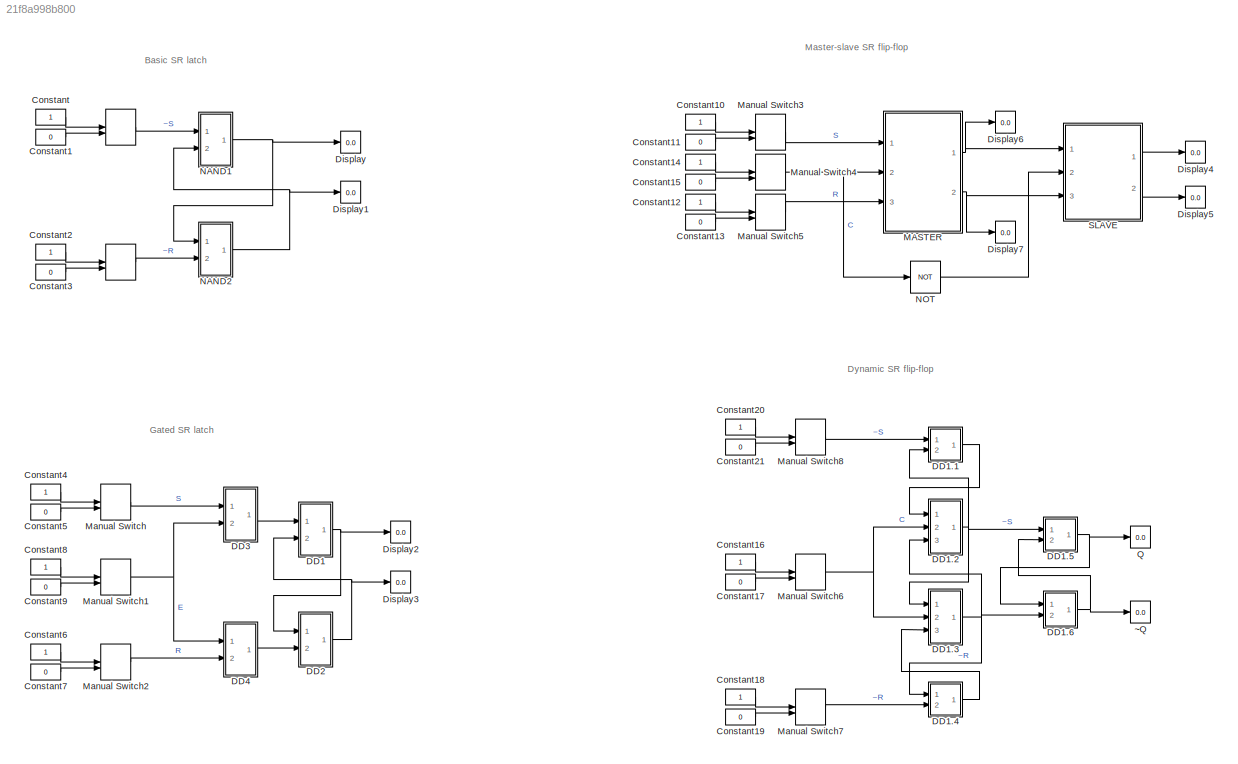
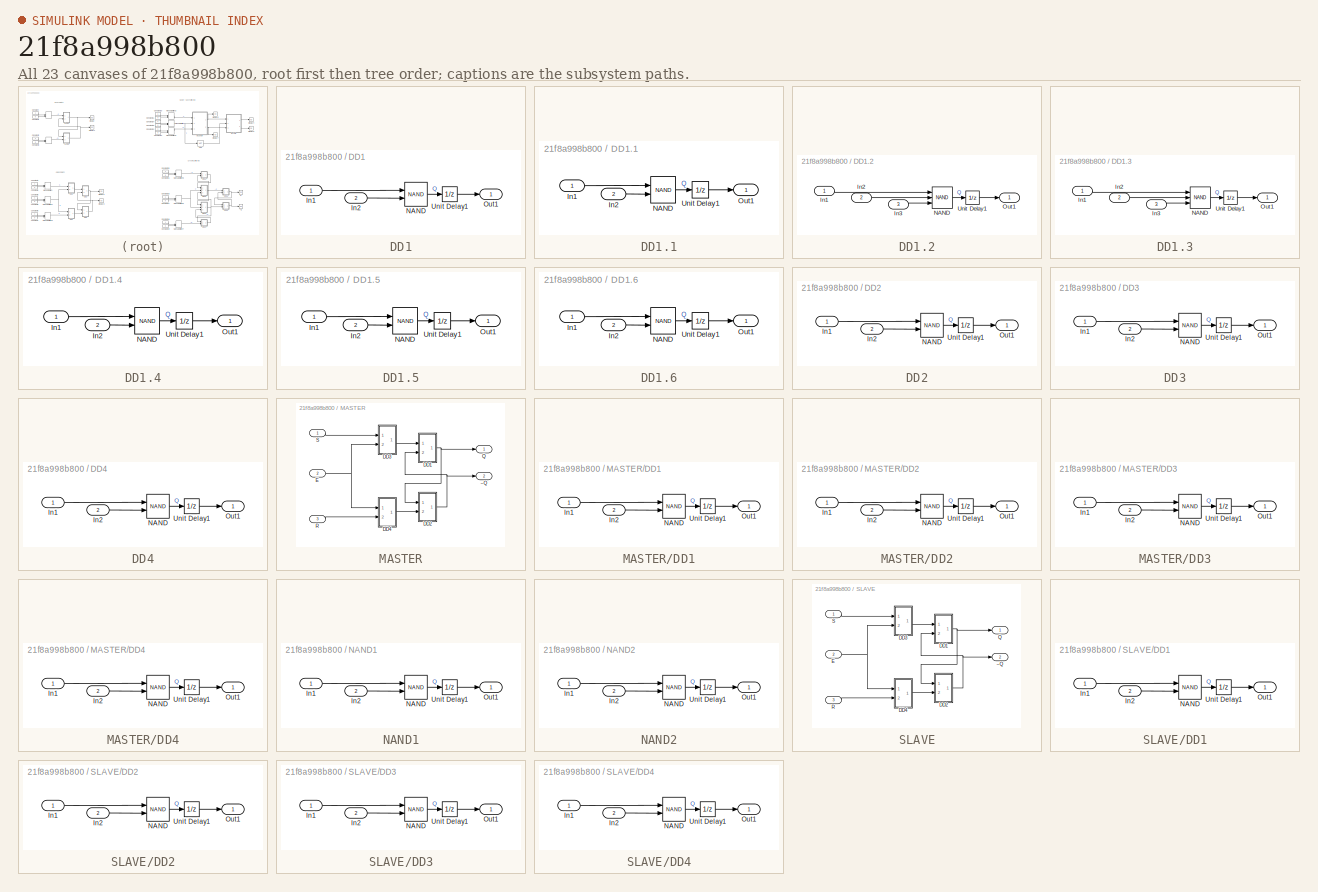
[diagram: thumbnail index - all 23 canvases of the model, root first then tree order]
MODEL slx_21f8a998b800
KIND model
CONFIG AbsTol = auto
CONFIG EnableMultiTasking = off
CONFIG FixedStep = 1
CONFIG MaxStep = 1
CONFIG MinStep = auto
CONFIG RelTol = 1e-3
CONFIG SampleTimeConstraint = Unconstrained
CONFIG Solver = FixedStepAuto
CONFIG SolverName = FixedStepAuto
CONFIG StartTime = 0.0
CONFIG StopTime = inf
BLOCK [ManualSwitch]  
BLOCK [Constant] Constant
  OutDataTypeStr = boolean
BLOCK [Constant] Constant1
  OutDataTypeStr = boolean
  Value = 0
BLOCK [Constant] Constant10
  OutDataTypeStr = boolean
BLOCK [Constant] Constant11
  OutDataTypeStr = boolean
  Value = 0
BLOCK [Constant] Constant12
  OutDataTypeStr = boolean
BLOCK [Constant] Constant13
  OutDataTypeStr = boolean
  Value = 0
BLOCK [Constant] Constant14
  OutDataTypeStr = boolean
BLOCK [Constant] Constant15
  OutDataTypeStr = boolean
  Value = 0
BLOCK [Constant] Constant16
  OutDataTypeStr = boolean
BLOCK [Constant] Constant17
  OutDataTypeStr = boolean
  Value = 0
BLOCK [Constant] Constant18
  OutDataTypeStr = boolean
BLOCK [Constant] Constant19
  OutDataTypeStr = boolean
  Value = 0
BLOCK [Constant] Constant2
  OutDataTypeStr = boolean
BLOCK [Constant] Constant20
  OutDataTypeStr = boolean
BLOCK [Constant] Constant21
  OutDataTypeStr = boolean
  Value = 0
BLOCK [Constant] Constant3
  OutDataTypeStr = boolean
  Value = 0
BLOCK [Constant] Constant4
  OutDataTypeStr = boolean
BLOCK [Constant] Constant5
  OutDataTypeStr = boolean
  Value = 0
BLOCK [Constant] Constant6
  OutDataTypeStr = boolean
BLOCK [Constant] Constant7
  OutDataTypeStr = boolean
  Value = 0
BLOCK [Constant] Constant8
  OutDataTypeStr = boolean
BLOCK [Constant] Constant9
  OutDataTypeStr = boolean
  Value = 0
BLOCK [SubSystem] DD1
  Ports = [2, 1]
  RequestExecContextInheritance = off
BLOCK [SubSystem] DD1.1
  Ports = [2, 1]
  RequestExecContextInheritance = off
BLOCK [Inport] DD1.1/In1
  IconDisplay = Port number
BLOCK [Inport] DD1.1/In2
  IconDisplay = Port number
  Port = 2
BLOCK [Logic] DD1.1/NAND
  AllPortsSameDT = off
  IconShape = distinctive
  Operator = NAND
  OutDataTypeStr = boolean
  Ports = [2, 1]
BLOCK [Outport] DD1.1/Out1
  IconDisplay = Port number
BLOCK [UnitDelay] DD1.1/Unit Delay1
  HasFrameUpgradeWarning = on
  SampleTime = -1
BLOCK [SubSystem] DD1.2
  Ports = [3, 1]
  RequestExecContextInheritance = off
BLOCK [Inport] DD1.2/In1
  IconDisplay = Port number
BLOCK [Inport] DD1.2/In2
  IconDisplay = Port number
  Port = 2
BLOCK [Inport] DD1.2/In3
  IconDisplay = Port number
  Port = 3
BLOCK [Logic] DD1.2/NAND
  AllPortsSameDT = off
  IconShape = distinctive
  Inputs = 3
  Operator = NAND
  OutDataTypeStr = boolean
  Ports = [3, 1]
BLOCK [Outport] DD1.2/Out1
  IconDisplay = Port number
BLOCK [UnitDelay] DD1.2/Unit Delay1
  HasFrameUpgradeWarning = on
  SampleTime = -1
BLOCK [SubSystem] DD1.3
  Ports = [3, 1]
  RequestExecContextInheritance = off
BLOCK [Inport] DD1.3/In1
  IconDisplay = Port number
BLOCK [Inport] DD1.3/In2
  IconDisplay = Port number
  Port = 2
BLOCK [Inport] DD1.3/In3
  IconDisplay = Port number
  Port = 3
BLOCK [Logic] DD1.3/NAND
  AllPortsSameDT = off
  IconShape = distinctive
  Inputs = 3
  Operator = NAND
  OutDataTypeStr = boolean
  Ports = [3, 1]
BLOCK [Outport] DD1.3/Out1
  IconDisplay = Port number
BLOCK [UnitDelay] DD1.3/Unit Delay1
  HasFrameUpgradeWarning = on
  SampleTime = -1
BLOCK [SubSystem] DD1.4
  Ports = [2, 1]
  RequestExecContextInheritance = off
BLOCK [Inport] DD1.4/In1
  IconDisplay = Port number
BLOCK [Inport] DD1.4/In2
  IconDisplay = Port number
  Port = 2
BLOCK [Logic] DD1.4/NAND
  AllPortsSameDT = off
  IconShape = distinctive
  Operator = NAND
  OutDataTypeStr = boolean
  Ports = [2, 1]
BLOCK [Outport] DD1.4/Out1
  IconDisplay = Port number
BLOCK [UnitDelay] DD1.4/Unit Delay1
  HasFrameUpgradeWarning = on
  SampleTime = -1
BLOCK [SubSystem] DD1.5
  Ports = [2, 1]
  RequestExecContextInheritance = off
BLOCK [Inport] DD1.5/In1
  IconDisplay = Port number
BLOCK [Inport] DD1.5/In2
  IconDisplay = Port number
  Port = 2
BLOCK [Logic] DD1.5/NAND
  AllPortsSameDT = off
  IconShape = distinctive
  Operator = NAND
  OutDataTypeStr = boolean
  Ports = [2, 1]
BLOCK [Outport] DD1.5/Out1
  IconDisplay = Port number
BLOCK [UnitDelay] DD1.5/Unit Delay1
  HasFrameUpgradeWarning = on
  SampleTime = -1
BLOCK [SubSystem] DD1.6
  Ports = [2, 1]
  RequestExecContextInheritance = off
BLOCK [Inport] DD1.6/In1
  IconDisplay = Port number
BLOCK [Inport] DD1.6/In2
  IconDisplay = Port number
  Port = 2
BLOCK [Logic] DD1.6/NAND
  AllPortsSameDT = off
  IconShape = distinctive
  Operator = NAND
  OutDataTypeStr = boolean
  Ports = [2, 1]
BLOCK [Outport] DD1.6/Out1
  IconDisplay = Port number
BLOCK [UnitDelay] DD1.6/Unit Delay1
  HasFrameUpgradeWarning = on
  SampleTime = -1
BLOCK [Inport] DD1/In1
  IconDisplay = Port number
BLOCK [Inport] DD1/In2
  IconDisplay = Port number
  Port = 2
BLOCK [Logic] DD1/NAND
  AllPortsSameDT = off
  IconShape = distinctive
  Operator = NAND
  OutDataTypeStr = boolean
  Ports = [2, 1]
BLOCK [Outport] DD1/Out1
  IconDisplay = Port number
BLOCK [UnitDelay] DD1/Unit Delay1
  HasFrameUpgradeWarning = on
  SampleTime = -1
BLOCK [SubSystem] DD2
  Ports = [2, 1]
  RequestExecContextInheritance = off
BLOCK [Inport] DD2/In1
  IconDisplay = Port number
BLOCK [Inport] DD2/In2
  IconDisplay = Port number
  Port = 2
BLOCK [Logic] DD2/NAND
  AllPortsSameDT = off
  IconShape = distinctive
  Operator = NAND
  OutDataTypeStr = boolean
  Ports = [2, 1]
BLOCK [Outport] DD2/Out1
  IconDisplay = Port number
BLOCK [UnitDelay] DD2/Unit Delay1
  HasFrameUpgradeWarning = on
  SampleTime = -1
BLOCK [SubSystem] DD3
  Ports = [2, 1]
  RequestExecContextInheritance = off
BLOCK [Inport] DD3/In1
  IconDisplay = Port number
BLOCK [Inport] DD3/In2
  IconDisplay = Port number
  Port = 2
BLOCK [Logic] DD3/NAND
  AllPortsSameDT = off
  IconShape = distinctive
  Operator = NAND
  OutDataTypeStr = boolean
  Ports = [2, 1]
BLOCK [Outport] DD3/Out1
  IconDisplay = Port number
BLOCK [UnitDelay] DD3/Unit Delay1
  HasFrameUpgradeWarning = on
  SampleTime = -1
BLOCK [SubSystem] DD4
  Ports = [2, 1]
  RequestExecContextInheritance = off
BLOCK [Inport] DD4/In1
  IconDisplay = Port number
BLOCK [Inport] DD4/In2
  IconDisplay = Port number
  Port = 2
BLOCK [Logic] DD4/NAND
  AllPortsSameDT = off
  IconShape = distinctive
  Operator = NAND
  OutDataTypeStr = boolean
  Ports = [2, 1]
BLOCK [Outport] DD4/Out1
  IconDisplay = Port number
BLOCK [UnitDelay] DD4/Unit Delay1
  HasFrameUpgradeWarning = on
  SampleTime = -1
BLOCK [Display] Display
  Decimation = 1
  Ports = [1]
BLOCK [Display] Display1
  Decimation = 1
  Ports = [1]
BLOCK [Display] Display2
  Decimation = 1
  Ports = [1]
BLOCK [Display] Display3
  Decimation = 1
  Ports = [1]
BLOCK [Display] Display4
  Decimation = 1
  Ports = [1]
BLOCK [Display] Display5
  Decimation = 1
  Ports = [1]
BLOCK [Display] Display6
  Decimation = 1
  Ports = [1]
BLOCK [Display] Display7
  Decimation = 1
  Ports = [1]
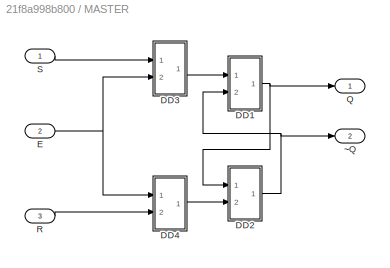
BLOCK [SubSystem] MASTER
  Ports = [3, 2]
  RequestExecContextInheritance = off
BLOCK [SubSystem] MASTER/DD1
  Ports = [2, 1]
  RequestExecContextInheritance = off
BLOCK [Inport] MASTER/DD1/In1
  IconDisplay = Port number
BLOCK [Inport] MASTER/DD1/In2
  IconDisplay = Port number
  Port = 2
BLOCK [Logic] MASTER/DD1/NAND
  AllPortsSameDT = off
  IconShape = distinctive
  Operator = NAND
  OutDataTypeStr = boolean
  Ports = [2, 1]
BLOCK [Outport] MASTER/DD1/Out1
  IconDisplay = Port number
BLOCK [UnitDelay] MASTER/DD1/Unit Delay1
  HasFrameUpgradeWarning = on
  SampleTime = -1
BLOCK [SubSystem] MASTER/DD2
  Ports = [2, 1]
  RequestExecContextInheritance = off
BLOCK [Inport] MASTER/DD2/In1
  IconDisplay = Port number
BLOCK [Inport] MASTER/DD2/In2
  IconDisplay = Port number
  Port = 2
BLOCK [Logic] MASTER/DD2/NAND
  AllPortsSameDT = off
  IconShape = distinctive
  Operator = NAND
  OutDataTypeStr = boolean
  Ports = [2, 1]
BLOCK [Outport] MASTER/DD2/Out1
  IconDisplay = Port number
BLOCK [UnitDelay] MASTER/DD2/Unit Delay1
  HasFrameUpgradeWarning = on
  SampleTime = -1
BLOCK [SubSystem] MASTER/DD3
  Ports = [2, 1]
  RequestExecContextInheritance = off
BLOCK [Inport] MASTER/DD3/In1
  IconDisplay = Port number
BLOCK [Inport] MASTER/DD3/In2
  IconDisplay = Port number
  Port = 2
BLOCK [Logic] MASTER/DD3/NAND
  AllPortsSameDT = off
  IconShape = distinctive
  Operator = NAND
  OutDataTypeStr = boolean
  Ports = [2, 1]
BLOCK [Outport] MASTER/DD3/Out1
  IconDisplay = Port number
BLOCK [UnitDelay] MASTER/DD3/Unit Delay1
  HasFrameUpgradeWarning = on
  SampleTime = -1
BLOCK [SubSystem] MASTER/DD4
  Ports = [2, 1]
  RequestExecContextInheritance = off
BLOCK [Inport] MASTER/DD4/In1
  IconDisplay = Port number
BLOCK [Inport] MASTER/DD4/In2
  IconDisplay = Port number
  Port = 2
BLOCK [Logic] MASTER/DD4/NAND
  AllPortsSameDT = off
  IconShape = distinctive
  Operator = NAND
  OutDataTypeStr = boolean
  Ports = [2, 1]
BLOCK [Outport] MASTER/DD4/Out1
  IconDisplay = Port number
BLOCK [UnitDelay] MASTER/DD4/Unit Delay1
  HasFrameUpgradeWarning = on
  SampleTime = -1
BLOCK [Inport] MASTER/E
  IconDisplay = Port number
  Port = 2
BLOCK [Outport] MASTER/Q
  IconDisplay = Port number
BLOCK [Inport] MASTER/R
  IconDisplay = Port number
  Port = 3
BLOCK [Inport] MASTER/S
  IconDisplay = Port number
BLOCK [Outport] MASTER/~Q
  IconDisplay = Port number
  Port = 2
BLOCK [ManualSwitch] Manual Switch
  CurrentSetting = 0
BLOCK [ManualSwitch] Manual Switch1
  CurrentSetting = 0
BLOCK [ManualSwitch] Manual Switch2
  CurrentSetting = 0
BLOCK [ManualSwitch] Manual Switch3
BLOCK [ManualSwitch] Manual Switch4
  CurrentSetting = 0
BLOCK [ManualSwitch] Manual Switch5
  CurrentSetting = 0
BLOCK [ManualSwitch] Manual Switch6
  CurrentSetting = 0
BLOCK [ManualSwitch] Manual Switch7
BLOCK [ManualSwitch] Manual Switch8
  CurrentSetting = 0
BLOCK [SubSystem] NAND1
  Ports = [2, 1]
  RequestExecContextInheritance = off
BLOCK [Inport] NAND1/In1
  IconDisplay = Port number
BLOCK [Inport] NAND1/In2
  IconDisplay = Port number
  Port = 2
BLOCK [Logic] NAND1/NAND
  AllPortsSameDT = off
  IconShape = distinctive
  Operator = NAND
  OutDataTypeStr = boolean
  Ports = [2, 1]
BLOCK [Outport] NAND1/Out1
  IconDisplay = Port number
BLOCK [UnitDelay] NAND1/Unit Delay1
  HasFrameUpgradeWarning = on
  SampleTime = -1
BLOCK [SubSystem] NAND2
  Ports = [2, 1]
  RequestExecContextInheritance = off
BLOCK [Inport] NAND2/In1
  IconDisplay = Port number
BLOCK [Inport] NAND2/In2
  IconDisplay = Port number
  Port = 2
BLOCK [Logic] NAND2/NAND
  AllPortsSameDT = off
  IconShape = distinctive
  Operator = NAND
  OutDataTypeStr = boolean
  Ports = [2, 1]
BLOCK [Outport] NAND2/Out1
  IconDisplay = Port number
BLOCK [UnitDelay] NAND2/Unit Delay1
  HasFrameUpgradeWarning = on
  SampleTime = -1
BLOCK [Logic] NOT
  AllPortsSameDT = off
  IconShape = distinctive
  Operator = NOT
  OutDataTypeStr = boolean
  Ports = [1, 1]
BLOCK [Display] Q
  Decimation = 1
  Ports = [1]
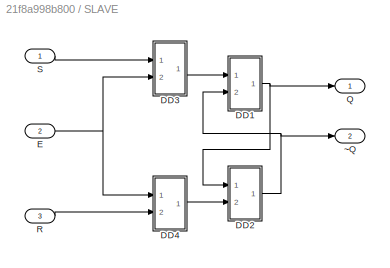
BLOCK [SubSystem] SLAVE
  Ports = [3, 2]
  RequestExecContextInheritance = off
BLOCK [SubSystem] SLAVE/DD1
  Ports = [2, 1]
  RequestExecContextInheritance = off
BLOCK [Inport] SLAVE/DD1/In1
  IconDisplay = Port number
BLOCK [Inport] SLAVE/DD1/In2
  IconDisplay = Port number
  Port = 2
BLOCK [Logic] SLAVE/DD1/NAND
  AllPortsSameDT = off
  IconShape = distinctive
  Operator = NAND
  OutDataTypeStr = boolean
  Ports = [2, 1]
BLOCK [Outport] SLAVE/DD1/Out1
  IconDisplay = Port number
BLOCK [UnitDelay] SLAVE/DD1/Unit Delay1
  HasFrameUpgradeWarning = on
  SampleTime = -1
BLOCK [SubSystem] SLAVE/DD2
  Ports = [2, 1]
  RequestExecContextInheritance = off
BLOCK [Inport] SLAVE/DD2/In1
  IconDisplay = Port number
BLOCK [Inport] SLAVE/DD2/In2
  IconDisplay = Port number
  Port = 2
BLOCK [Logic] SLAVE/DD2/NAND
  AllPortsSameDT = off
  IconShape = distinctive
  Operator = NAND
  OutDataTypeStr = boolean
  Ports = [2, 1]
BLOCK [Outport] SLAVE/DD2/Out1
  IconDisplay = Port number
BLOCK [UnitDelay] SLAVE/DD2/Unit Delay1
  HasFrameUpgradeWarning = on
  SampleTime = -1
BLOCK [SubSystem] SLAVE/DD3
  Ports = [2, 1]
  RequestExecContextInheritance = off
BLOCK [Inport] SLAVE/DD3/In1
  IconDisplay = Port number
BLOCK [Inport] SLAVE/DD3/In2
  IconDisplay = Port number
  Port = 2
BLOCK [Logic] SLAVE/DD3/NAND
  AllPortsSameDT = off
  IconShape = distinctive
  Operator = NAND
  OutDataTypeStr = boolean
  Ports = [2, 1]
BLOCK [Outport] SLAVE/DD3/Out1
  IconDisplay = Port number
BLOCK [UnitDelay] SLAVE/DD3/Unit Delay1
  HasFrameUpgradeWarning = on
  SampleTime = -1
BLOCK [SubSystem] SLAVE/DD4
  Ports = [2, 1]
  RequestExecContextInheritance = off
BLOCK [Inport] SLAVE/DD4/In1
  IconDisplay = Port number
BLOCK [Inport] SLAVE/DD4/In2
  IconDisplay = Port number
  Port = 2
BLOCK [Logic] SLAVE/DD4/NAND
  AllPortsSameDT = off
  IconShape = distinctive
  Operator = NAND
  OutDataTypeStr = boolean
  Ports = [2, 1]
BLOCK [Outport] SLAVE/DD4/Out1
  IconDisplay = Port number
BLOCK [UnitDelay] SLAVE/DD4/Unit Delay1
  HasFrameUpgradeWarning = on
  SampleTime = -1
BLOCK [Inport] SLAVE/E
  IconDisplay = Port number
  Port = 2
BLOCK [Outport] SLAVE/Q
  IconDisplay = Port number
BLOCK [Inport] SLAVE/R
  IconDisplay = Port number
  Port = 3
BLOCK [Inport] SLAVE/S
  IconDisplay = Port number
BLOCK [Outport] SLAVE/~Q
  IconDisplay = Port number
  Port = 2
BLOCK [Display] ~Q
  Decimation = 1
  Ports = [1]
ANNOTATION (root): Basic SR latch
ANNOTATION (root): Dynamic SR flip-flop
ANNOTATION (root): Gated SR latch
ANNOTATION (root): Master-slave SR flip-flop
NET  :1 -> NAND1:1, NAND2:2
LINE Constant10:1 -> Manual Switch3:1
LINE Constant11:1 -> Manual Switch3:2
LINE Constant12:1 -> Manual Switch5:1
LINE Constant13:1 -> Manual Switch5:2
LINE Constant14:1 -> Manual Switch4:1
LINE Constant15:1 -> Manual Switch4:2
LINE Constant16:1 -> Manual Switch6:1
LINE Constant17:1 -> Manual Switch6:2
LINE Constant18:1 -> Manual Switch7:1
LINE Constant19:1 -> Manual Switch7:2
LINE Constant1:1 ->  :2
LINE Constant20:1 -> Manual Switch8:1
LINE Constant21:1 -> Manual Switch8:2
LINE Constant2:1 ->  :1
LINE Constant3:1 ->  :2
LINE Constant4:1 -> Manual Switch:1
LINE Constant5:1 -> Manual Switch:2
LINE Constant6:1 -> Manual Switch2:1
LINE Constant7:1 -> Manual Switch2:2
LINE Constant8:1 -> Manual Switch1:1
LINE Constant9:1 -> Manual Switch1:2
LINE Constant:1 ->  :1
LINE DD1.1/In1:1 -> DD1.1/NAND:1
LINE DD1.1/In2:1 -> DD1.1/NAND:2
LINE DD1.1/NAND:1 -> DD1.1/Unit Delay1:1
LINE DD1.1/Unit Delay1:1 -> DD1.1/Out1:1
LINE DD1.1:1 -> DD1.2:1
LINE DD1.2/In1:1 -> DD1.2/NAND:1
LINE DD1.2/In2:1 -> DD1.2/NAND:2
LINE DD1.2/In3:1 -> DD1.2/NAND:3
LINE DD1.2/NAND:1 -> DD1.2/Unit Delay1:1
LINE DD1.2/Unit Delay1:1 -> DD1.2/Out1:1
NET DD1.2:1 -> DD1.1:2, DD1.3:1, DD1.5:1
LINE DD1.3/In1:1 -> DD1.3/NAND:1
LINE DD1.3/In2:1 -> DD1.3/NAND:2
LINE DD1.3/In3:1 -> DD1.3/NAND:3
LINE DD1.3/NAND:1 -> DD1.3/Unit Delay1:1
LINE DD1.3/Unit Delay1:1 -> DD1.3/Out1:1
NET DD1.3:1 -> DD1.2:3, DD1.4:1, DD1.6:2
LINE DD1.4/In1:1 -> DD1.4/NAND:1
LINE DD1.4/In2:1 -> DD1.4/NAND:2
LINE DD1.4/NAND:1 -> DD1.4/Unit Delay1:1
LINE DD1.4/Unit Delay1:1 -> DD1.4/Out1:1
LINE DD1.4:1 -> DD1.3:3
LINE DD1.5/In1:1 -> DD1.5/NAND:1
LINE DD1.5/In2:1 -> DD1.5/NAND:2
LINE DD1.5/NAND:1 -> DD1.5/Unit Delay1:1
LINE DD1.5/Unit Delay1:1 -> DD1.5/Out1:1
NET DD1.5:1 -> DD1.6:1, Q:1
LINE DD1.6/In1:1 -> DD1.6/NAND:1
LINE DD1.6/In2:1 -> DD1.6/NAND:2
LINE DD1.6/NAND:1 -> DD1.6/Unit Delay1:1
LINE DD1.6/Unit Delay1:1 -> DD1.6/Out1:1
NET DD1.6:1 -> DD1.5:2, ~Q:1
LINE DD1/In1:1 -> DD1/NAND:1
LINE DD1/In2:1 -> DD1/NAND:2
LINE DD1/NAND:1 -> DD1/Unit Delay1:1
LINE DD1/Unit Delay1:1 -> DD1/Out1:1
NET DD1:1 -> DD2:1, Display2:1
LINE DD2/In1:1 -> DD2/NAND:1
LINE DD2/In2:1 -> DD2/NAND:2
LINE DD2/NAND:1 -> DD2/Unit Delay1:1
LINE DD2/Unit Delay1:1 -> DD2/Out1:1
NET DD2:1 -> DD1:2, Display3:1
LINE DD3/In1:1 -> DD3/NAND:1
LINE DD3/In2:1 -> DD3/NAND:2
LINE DD3/NAND:1 -> DD3/Unit Delay1:1
LINE DD3/Unit Delay1:1 -> DD3/Out1:1
LINE DD3:1 -> DD1:1
LINE DD4/In1:1 -> DD4/NAND:1
LINE DD4/In2:1 -> DD4/NAND:2
LINE DD4/NAND:1 -> DD4/Unit Delay1:1
LINE DD4/Unit Delay1:1 -> DD4/Out1:1
LINE DD4:1 -> DD2:2
LINE MASTER/DD1/In1:1 -> MASTER/DD1/NAND:1
LINE MASTER/DD1/In2:1 -> MASTER/DD1/NAND:2
LINE MASTER/DD1/NAND:1 -> MASTER/DD1/Unit Delay1:1
LINE MASTER/DD1/Unit Delay1:1 -> MASTER/DD1/Out1:1
NET MASTER/DD1:1 -> MASTER/DD2:1, MASTER/Q:1
LINE MASTER/DD2/In1:1 -> MASTER/DD2/NAND:1
LINE MASTER/DD2/In2:1 -> MASTER/DD2/NAND:2
LINE MASTER/DD2/NAND:1 -> MASTER/DD2/Unit Delay1:1
LINE MASTER/DD2/Unit Delay1:1 -> MASTER/DD2/Out1:1
NET MASTER/DD2:1 -> MASTER/DD1:2, MASTER/~Q:1
LINE MASTER/DD3/In1:1 -> MASTER/DD3/NAND:1
LINE MASTER/DD3/In2:1 -> MASTER/DD3/NAND:2
LINE MASTER/DD3/NAND:1 -> MASTER/DD3/Unit Delay1:1
LINE MASTER/DD3/Unit Delay1:1 -> MASTER/DD3/Out1:1
LINE MASTER/DD3:1 -> MASTER/DD1:1
LINE MASTER/DD4/In1:1 -> MASTER/DD4/NAND:1
LINE MASTER/DD4/In2:1 -> MASTER/DD4/NAND:2
LINE MASTER/DD4/NAND:1 -> MASTER/DD4/Unit Delay1:1
LINE MASTER/DD4/Unit Delay1:1 -> MASTER/DD4/Out1:1
LINE MASTER/DD4:1 -> MASTER/DD2:2
NET MASTER/E:1 -> MASTER/DD3:2, MASTER/DD4:1
LINE MASTER/R:1 -> MASTER/DD4:2
LINE MASTER/S:1 -> MASTER/DD3:1
NET MASTER:1 -> Display6:1, SLAVE:1
NET MASTER:2 -> Display7:1, SLAVE:3
NET Manual Switch1:1 -> DD3:2, DD4:1
LINE Manual Switch2:1 -> DD4:2
LINE Manual Switch3:1 -> MASTER:1
NET Manual Switch4:1 -> MASTER:2, NOT:1
LINE Manual Switch5:1 -> MASTER:3
NET Manual Switch6:1 -> DD1.2:2, DD1.3:2
LINE Manual Switch7:1 -> DD1.4:2
LINE Manual Switch8:1 -> DD1.1:1
LINE Manual Switch:1 -> DD3:1
LINE NAND1/In1:1 -> NAND1/NAND:1
LINE NAND1/In2:1 -> NAND1/NAND:2
LINE NAND1/NAND:1 -> NAND1/Unit Delay1:1
LINE NAND1/Unit Delay1:1 -> NAND1/Out1:1
NET NAND1:1 -> Display:1, NAND2:1
LINE NAND2/In1:1 -> NAND2/NAND:1
LINE NAND2/In2:1 -> NAND2/NAND:2
LINE NAND2/NAND:1 -> NAND2/Unit Delay1:1
LINE NAND2/Unit Delay1:1 -> NAND2/Out1:1
NET NAND2:1 -> Display1:1, NAND1:2
LINE NOT:1 -> SLAVE:2
LINE SLAVE/DD1/In1:1 -> SLAVE/DD1/NAND:1
LINE SLAVE/DD1/In2:1 -> SLAVE/DD1/NAND:2
LINE SLAVE/DD1/NAND:1 -> SLAVE/DD1/Unit Delay1:1
LINE SLAVE/DD1/Unit Delay1:1 -> SLAVE/DD1/Out1:1
NET SLAVE/DD1:1 -> SLAVE/DD2:1, SLAVE/Q:1
LINE SLAVE/DD2/In1:1 -> SLAVE/DD2/NAND:1
LINE SLAVE/DD2/In2:1 -> SLAVE/DD2/NAND:2
LINE SLAVE/DD2/NAND:1 -> SLAVE/DD2/Unit Delay1:1
LINE SLAVE/DD2/Unit Delay1:1 -> SLAVE/DD2/Out1:1
NET SLAVE/DD2:1 -> SLAVE/DD1:2, SLAVE/~Q:1
LINE SLAVE/DD3/In1:1 -> SLAVE/DD3/NAND:1
LINE SLAVE/DD3/In2:1 -> SLAVE/DD3/NAND:2
LINE SLAVE/DD3/NAND:1 -> SLAVE/DD3/Unit Delay1:1
LINE SLAVE/DD3/Unit Delay1:1 -> SLAVE/DD3/Out1:1
LINE SLAVE/DD3:1 -> SLAVE/DD1:1
LINE SLAVE/DD4/In1:1 -> SLAVE/DD4/NAND:1
LINE SLAVE/DD4/In2:1 -> SLAVE/DD4/NAND:2
LINE SLAVE/DD4/NAND:1 -> SLAVE/DD4/Unit Delay1:1
LINE SLAVE/DD4/Unit Delay1:1 -> SLAVE/DD4/Out1:1
LINE SLAVE/DD4:1 -> SLAVE/DD2:2
NET SLAVE/E:1 -> SLAVE/DD3:2, SLAVE/DD4:1
LINE SLAVE/R:1 -> SLAVE/DD4:2
LINE SLAVE/S:1 -> SLAVE/DD3:1
LINE SLAVE:1 -> Display4:1
LINE SLAVE:2 -> Display5:1
note: NET lines group one-source signal fan-out (src -> all destinations, sorted); 1:1 wires keep LINE
